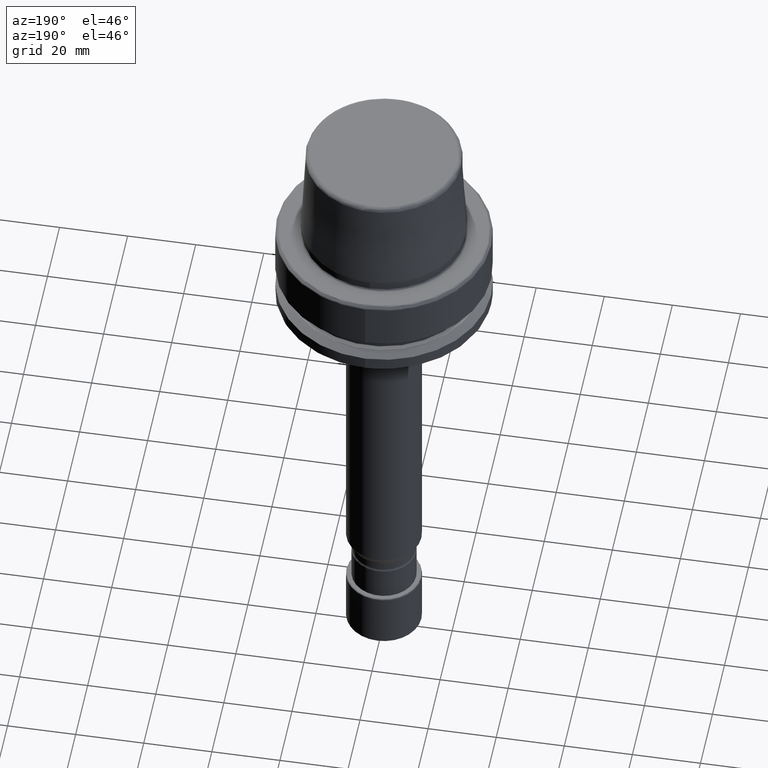
[diagram: clean part render]
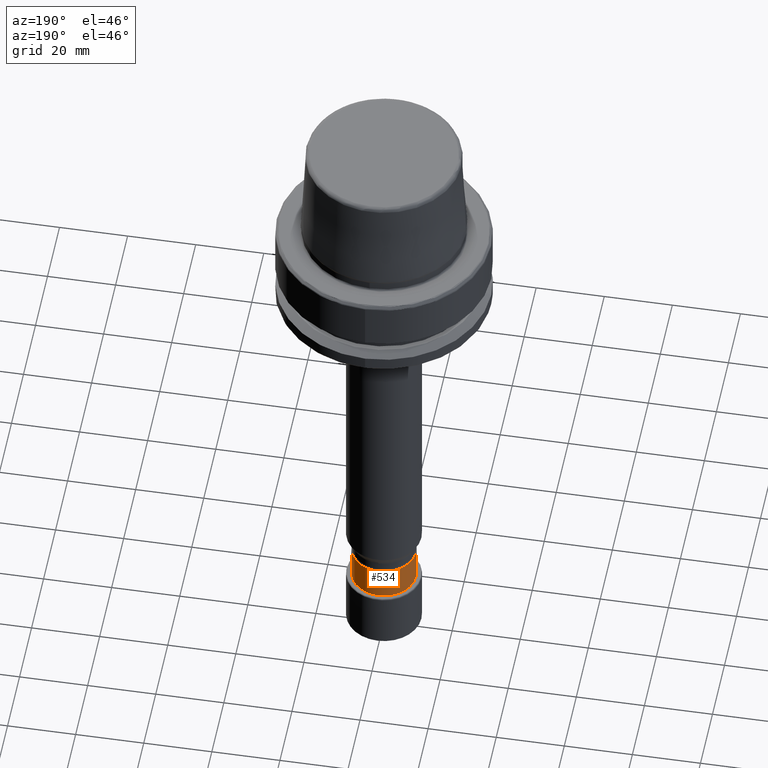
[diagram: same view with one face highlighted and labeled with its STEP entity id]
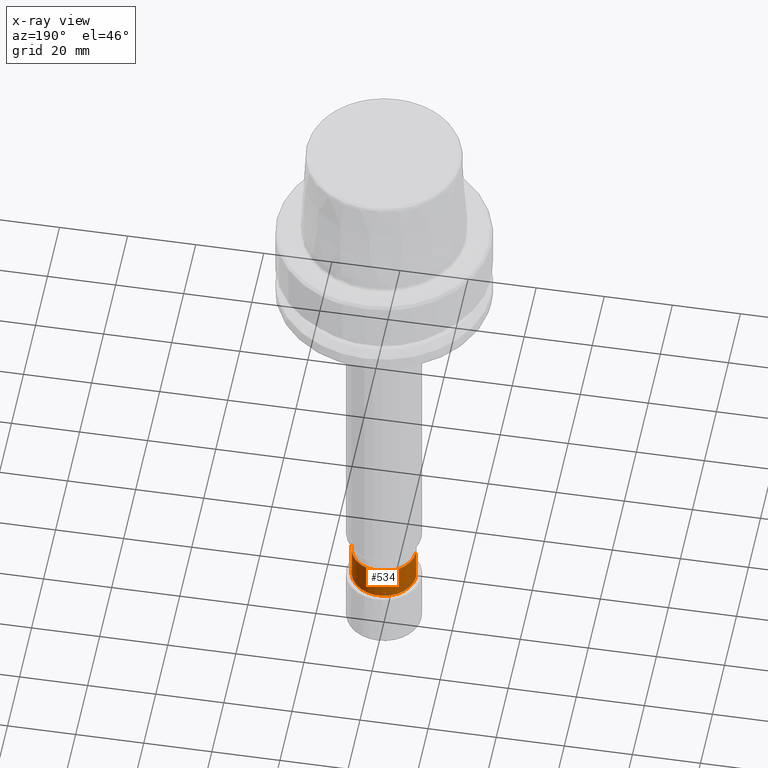
[diagram: x-ray of the same camera — body ghosted, the highlighted face saturated]
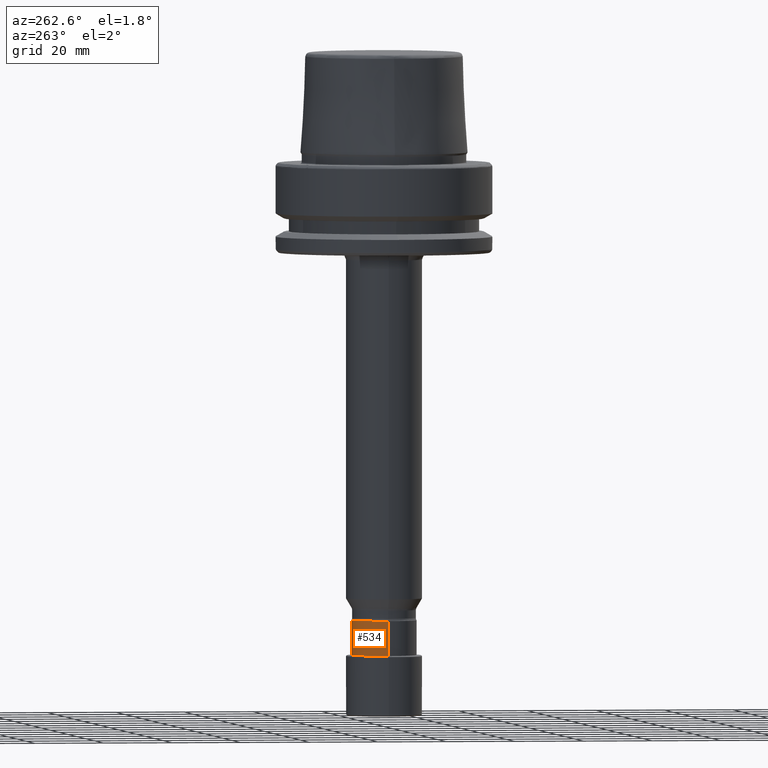
[diagram: same view with one face highlighted and labeled with its STEP entity id]
A machine part, auxiliary view. The second image highlights one B-rep face of the part: STEP entity #534.
The next image is the same camera in x-ray: the body ghosted, the highlighted face saturated — about 0% of this face is hidden behind the body in this view.
A second angle (auxiliary view) of the same face is appended — the face is thin or edge-on in the first view.
In plain terms, the highlighted cylindrical surface (edge-blend (fillet) strip) has radius 9.45 mm, axis along (0, 0, 1).
Its self-contained STEP definition (entity closure, byte-faithful):
#42 = ORIENTED_EDGE ( 'NONE', *, *, #1158, .T. ) ;
#248 = VERTEX_POINT ( 'NONE', #500 ) ;
#312 = VERTEX_POINT ( 'NONE', #1819 ) ;
#335 = DIRECTION ( 'NONE',  ( 1.000000000000000000, 0.0000000000000000000, 0.0000000000000000000 ) ) ;
#346 = CARTESIAN_POINT ( 'NONE',  ( -9.449999999999988600, 0.0000000000000000000, -132.4000000000000100 ) ) ;
#356 = ORIENTED_EDGE ( 'NONE', *, *, #2337, .T. ) ;
#373 = CARTESIAN_POINT ( 'NONE',  ( 0.0000000000000000000, 0.0000000000000000000, -142.5000000000000300 ) ) ;
#500 = CARTESIAN_POINT ( 'NONE',  ( -9.450000000000001100, 1.157291225194249000E-015, -142.5000000000000300 ) ) ;
#503 = VECTOR ( 'NONE', #1324, 1000.000000000000000 ) ;
#514 = LINE ( 'NONE', #1918, #503 ) ;
#534 = ADVANCED_FACE ( 'NONE', ( #1608 ), #2063, .T. ) ;
#592 = DIRECTION ( 'NONE',  ( 1.000000000000000000, 0.0000000000000000000, 0.0000000000000000000 ) ) ;
#953 = CARTESIAN_POINT ( 'NONE',  ( 9.450000000000001100, 0.0000000000000000000, -142.5000000000000300 ) ) ;
#983 = CIRCLE ( 'NONE', #1862, 9.450000000000001100 ) ;
#1047 = ORIENTED_EDGE ( 'NONE', *, *, #2594, .F. ) ;
#1068 = CARTESIAN_POINT ( 'NONE',  ( 0.0000000000000000000, 0.0000000000000000000, -132.4000000000000100 ) ) ;
#1074 = EDGE_CURVE ( 'NONE', #312, #2131, #1927, .T. ) ;
#1076 = EDGE_LOOP ( 'NONE', ( #42, #356, #1047, #2200 ) ) ;
#1158 = EDGE_CURVE ( 'NONE', #312, #248, #983, .T. ) ;
#1284 = DIRECTION ( 'NONE',  ( 0.0000000000000000000, -1.000000000000000000, 0.0000000000000000000 ) ) ;
#1324 = DIRECTION ( 'NONE',  ( 0.0000000000000000000, 0.0000000000000000000, 1.000000000000000000 ) ) ;
#1397 = CARTESIAN_POINT ( 'NONE',  ( 0.0000000000000000000, 0.0000000000000000000, -142.5000000000000300 ) ) ;
#1583 = DIRECTION ( 'NONE',  ( 0.0000000000000000000, 0.0000000000000000000, 1.000000000000000000 ) ) ;
#1590 = DIRECTION ( 'NONE',  ( 0.0000000000000000000, 0.0000000000000000000, 1.000000000000000000 ) ) ;
#1608 = FACE_OUTER_BOUND ( 'NONE', #1076, .T. ) ;
#1793 = VECTOR ( 'NONE', #1583, 1000.000000000000000 ) ;
#1819 = CARTESIAN_POINT ( 'NONE',  ( 9.450000000000001100, 0.0000000000000000000, -142.5000000000000300 ) ) ;
#1826 = DIRECTION ( 'NONE',  ( 0.0000000000000000000, 0.0000000000000000000, 1.000000000000000000 ) ) ;
#1862 = AXIS2_PLACEMENT_3D ( 'NONE', #373, #1826, #592 ) ;
#1918 = CARTESIAN_POINT ( 'NONE',  ( -9.450000000000001100, 1.157291225194249000E-015, -142.5000000000000300 ) ) ;
#1927 = LINE ( 'NONE', #953, #1793 ) ;
#2063 = CYLINDRICAL_SURFACE ( 'NONE', #2414, 9.450000000000001100 ) ;
#2064 = CARTESIAN_POINT ( 'NONE',  ( 9.450000000000015300, 1.157291225194250600E-015, -132.4000000000000100 ) ) ;
#2131 = VERTEX_POINT ( 'NONE', #2064 ) ;
#2200 = ORIENTED_EDGE ( 'NONE', *, *, #1074, .F. ) ;
#2337 = EDGE_CURVE ( 'NONE', #248, #2438, #514, .T. ) ;
#2358 = CIRCLE ( 'NONE', #2584, 9.450000000000001100 ) ;
#2414 = AXIS2_PLACEMENT_3D ( 'NONE', #1397, #1590, #335 ) ;
#2438 = VERTEX_POINT ( 'NONE', #346 ) ;
#2490 = DIRECTION ( 'NONE',  ( 0.0000000000000000000, 0.0000000000000000000, 1.000000000000000000 ) ) ;
#2584 = AXIS2_PLACEMENT_3D ( 'NONE', #1068, #2490, #1284 ) ;
#2594 = EDGE_CURVE ( 'NONE', #2131, #2438, #2358, .T. ) ;